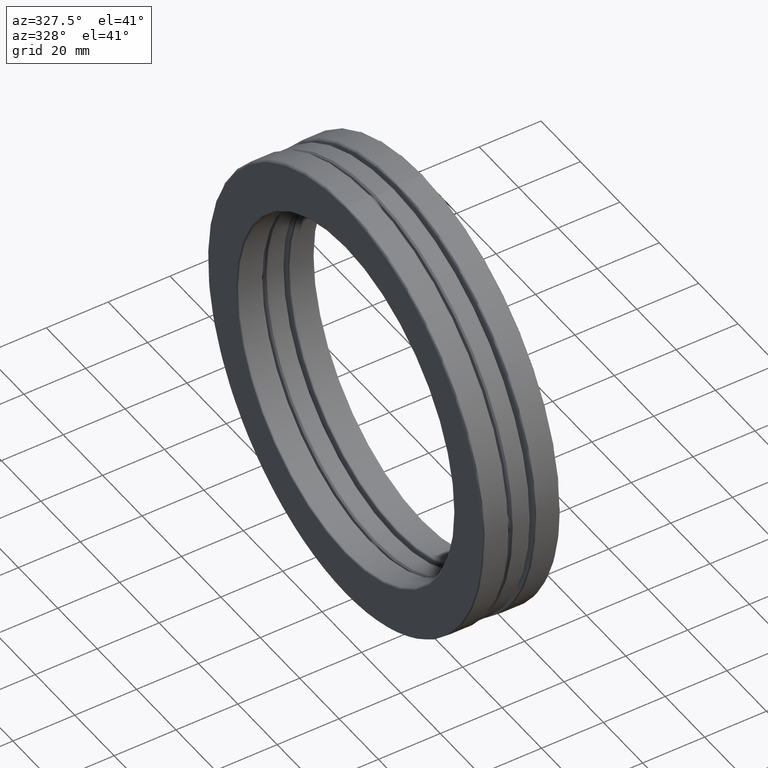
[diagram: clean part render]
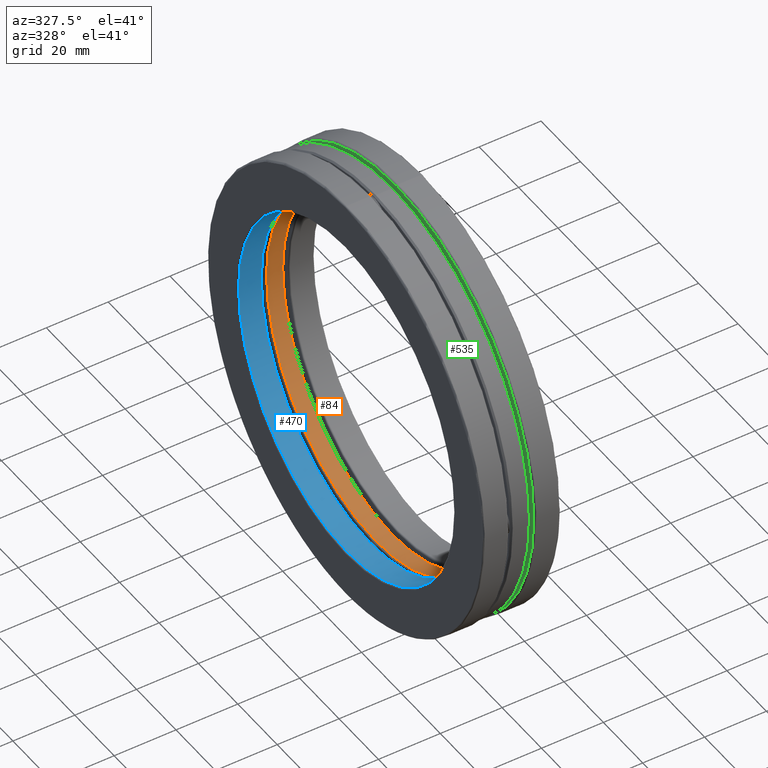
[diagram: same view with three faces highlighted in distinct colors, each labeled with its STEP entity id]
A machine part, auxiliary view with three faces highlighted in distinct colors.
Their STEP definitions:

[orange] entity #84 — the highlighted cylindrical surface (bore or boss wall) has radius 55.5117 mm, axis along (-1, -0, -0).
#35 = AXIS2_PLACEMENT_3D ( 'NONE', #153, #138, #716 ) ;
#71 = FACE_OUTER_BOUND ( 'NONE', #622, .T. ) ;
#84 = ADVANCED_FACE ( 'NONE', ( #71, #293 ), #739, .F. ) ;
#86 = CARTESIAN_POINT ( 'NONE',  ( 0.0000000000000000000, 0.0000000000000000000, 0.0000000000000000000 ) ) ;
#105 = CIRCLE ( 'NONE', #589, 2.185499999999999800 ) ;
#138 = DIRECTION ( 'NONE',  ( -1.000000000000000000, -0.0000000000000000000, -0.0000000000000000000 ) ) ;
#153 = CARTESIAN_POINT ( 'NONE',  ( -0.1029999999999999700, 0.0000000000000000000, 0.0000000000000000000 ) ) ;
#260 = VERTEX_POINT ( 'NONE', #486 ) ;
#281 = EDGE_LOOP ( 'NONE', ( #367 ) ) ;
#293 = FACE_OUTER_BOUND ( 'NONE', #281, .T. ) ;
#359 = DIRECTION ( 'NONE',  ( 0.0000000000000000000, 0.0000000000000000000, 1.000000000000000000 ) ) ;
#367 = ORIENTED_EDGE ( 'NONE', *, *, #454, .T. ) ;
#433 = CARTESIAN_POINT ( 'NONE',  ( -0.1029999999999999700, 0.0000000000000000000, 2.185499999999999800 ) ) ;
#449 = AXIS2_PLACEMENT_3D ( 'NONE', #86, #735, #460 ) ;
#454 = EDGE_CURVE ( 'NONE', #479, #479, #811, .T. ) ;
#460 = DIRECTION ( 'NONE',  ( 0.0000000000000000000, 0.0000000000000000000, 1.000000000000000000 ) ) ;
#474 = ORIENTED_EDGE ( 'NONE', *, *, #634, .F. ) ;
#479 = VERTEX_POINT ( 'NONE', #433 ) ;
#486 = CARTESIAN_POINT ( 'NONE',  ( 0.1030000000000000600, 0.0000000000000000000, 2.185499999999999800 ) ) ;
#539 = DIRECTION ( 'NONE',  ( -1.000000000000000000, -0.0000000000000000000, -0.0000000000000000000 ) ) ;
#589 = AXIS2_PLACEMENT_3D ( 'NONE', #793, #539, #359 ) ;
#622 = EDGE_LOOP ( 'NONE', ( #474 ) ) ;
#634 = EDGE_CURVE ( 'NONE', #260, #260, #105, .T. ) ;
#716 = DIRECTION ( 'NONE',  ( 0.0000000000000000000, 0.0000000000000000000, 1.000000000000000000 ) ) ;
#735 = DIRECTION ( 'NONE',  ( -1.000000000000000000, -0.0000000000000000000, -0.0000000000000000000 ) ) ;
#739 = CYLINDRICAL_SURFACE ( 'NONE', #449, 2.185499999999999800 ) ;
#793 = CARTESIAN_POINT ( 'NONE',  ( 0.1030000000000000600, 0.0000000000000000000, 0.0000000000000000000 ) ) ;
#811 = CIRCLE ( 'NONE', #35, 2.185499999999999800 ) ;

[blue] entity #470 — the highlighted cylindrical surface (bore or boss wall) has radius 55.0037 mm, axis along (-1, -0, -0).
#47 = DIRECTION ( 'NONE',  ( -1.000000000000000000, -0.0000000000000000000, -0.0000000000000000000 ) ) ;
#83 = DIRECTION ( 'NONE',  ( -1.000000000000000000, -0.0000000000000000000, -0.0000000000000000000 ) ) ;
#144 = CARTESIAN_POINT ( 'NONE',  ( -0.4719999999999999200, 0.0000000000000000000, 0.0000000000000000000 ) ) ;
#155 = EDGE_CURVE ( 'NONE', #384, #384, #728, .T. ) ;
#177 = CARTESIAN_POINT ( 'NONE',  ( -0.4719999999999999200, 0.0000000000000000000, 2.165499999999999800 ) ) ;
#211 = DIRECTION ( 'NONE',  ( 0.0000000000000000000, 0.0000000000000000000, 1.000000000000000000 ) ) ;
#262 = EDGE_CURVE ( 'NONE', #506, #506, #445, .T. ) ;
#300 = AXIS2_PLACEMENT_3D ( 'NONE', #559, #47, #756 ) ;
#340 = ORIENTED_EDGE ( 'NONE', *, *, #155, .T. ) ;
#384 = VERTEX_POINT ( 'NONE', #177 ) ;
#420 = AXIS2_PLACEMENT_3D ( 'NONE', #586, #458, #650 ) ;
#445 = CIRCLE ( 'NONE', #300, 2.165499999999999800 ) ;
#458 = DIRECTION ( 'NONE',  ( -1.000000000000000000, -0.0000000000000000000, -0.0000000000000000000 ) ) ;
#470 = ADVANCED_FACE ( 'NONE', ( #820, #638 ), #686, .F. ) ;
#506 = VERTEX_POINT ( 'NONE', #818 ) ;
#532 = EDGE_LOOP ( 'NONE', ( #340 ) ) ;
#559 = CARTESIAN_POINT ( 'NONE',  ( -0.1840032799999997100, 0.0000000000000000000, 0.0000000000000000000 ) ) ;
#575 = EDGE_LOOP ( 'NONE', ( #749 ) ) ;
#586 = CARTESIAN_POINT ( 'NONE',  ( 0.0000000000000000000, 0.0000000000000000000, 0.0000000000000000000 ) ) ;
#638 = FACE_OUTER_BOUND ( 'NONE', #575, .T. ) ;
#650 = DIRECTION ( 'NONE',  ( 0.0000000000000000000, 0.0000000000000000000, 1.000000000000000000 ) ) ;
#686 = CYLINDRICAL_SURFACE ( 'NONE', #420, 2.165499999999999800 ) ;
#728 = CIRCLE ( 'NONE', #784, 2.165499999999999800 ) ;
#749 = ORIENTED_EDGE ( 'NONE', *, *, #262, .F. ) ;
#756 = DIRECTION ( 'NONE',  ( 0.0000000000000000000, 0.0000000000000000000, 1.000000000000000000 ) ) ;
#784 = AXIS2_PLACEMENT_3D ( 'NONE', #144, #83, #211 ) ;
#818 = CARTESIAN_POINT ( 'NONE',  ( -0.1840032799999997100, 0.0000000000000000000, 2.165499999999999800 ) ) ;
#820 = FACE_OUTER_BOUND ( 'NONE', #532, .T. ) ;

[green] entity #535 — the highlighted planar face has unit normal (1, 0, 0).
#18 = CARTESIAN_POINT ( 'NONE',  ( 0.1640032800000010000, 0.0000000000000000000, 0.0000000000000000000 ) ) ;
#24 = DIRECTION ( 'NONE',  ( 1.000000000000000000, 0.0000000000000000000, 0.0000000000000000000 ) ) ;
#29 = EDGE_LOOP ( 'NONE', ( #279 ) ) ;
#46 = CARTESIAN_POINT ( 'NONE',  ( 0.1640032800000010000, 0.0000000000000000000, 2.735999999999999300 ) ) ;
#116 = DIRECTION ( 'NONE',  ( -1.000000000000000000, -0.0000000000000000000, -0.0000000000000000000 ) ) ;
#123 = AXIS2_PLACEMENT_3D ( 'NONE', #645, #24, #213 ) ;
#207 = EDGE_LOOP ( 'NONE', ( #419 ) ) ;
#213 = DIRECTION ( 'NONE',  ( 0.0000000000000000000, 0.0000000000000000000, -1.000000000000000000 ) ) ;
#253 = VERTEX_POINT ( 'NONE', #46 ) ;
#279 = ORIENTED_EDGE ( 'NONE', *, *, #772, .F. ) ;
#309 = FACE_BOUND ( 'NONE', #29, .T. ) ;
#318 = CARTESIAN_POINT ( 'NONE',  ( 0.1640032800000010000, 0.0000000000000000000, 2.638702027662629400 ) ) ;
#395 = VERTEX_POINT ( 'NONE', #318 ) ;
#419 = ORIENTED_EDGE ( 'NONE', *, *, #553, .T. ) ;
#440 = FACE_OUTER_BOUND ( 'NONE', #207, .T. ) ;
#457 = CIRCLE ( 'NONE', #704, 2.638702027662629400 ) ;
#469 = CIRCLE ( 'NONE', #547, 2.735999999999999300 ) ;
#492 = DIRECTION ( 'NONE',  ( 0.0000000000000000000, 0.0000000000000000000, 1.000000000000000000 ) ) ;
#524 = DIRECTION ( 'NONE',  ( 0.0000000000000000000, 0.0000000000000000000, 1.000000000000000000 ) ) ;
#535 = ADVANCED_FACE ( 'NONE', ( #309, #440 ), #782, .F. ) ;
#547 = AXIS2_PLACEMENT_3D ( 'NONE', #18, #720, #524 ) ;
#553 = EDGE_CURVE ( 'NONE', #253, #253, #469, .T. ) ;
#645 = CARTESIAN_POINT ( 'NONE',  ( 0.1640032800000010000, 0.0000000000000000000, 0.0000000000000000000 ) ) ;
#704 = AXIS2_PLACEMENT_3D ( 'NONE', #812, #116, #492 ) ;
#720 = DIRECTION ( 'NONE',  ( -1.000000000000000000, -0.0000000000000000000, -0.0000000000000000000 ) ) ;
#772 = EDGE_CURVE ( 'NONE', #395, #395, #457, .T. ) ;
#782 = PLANE ( 'NONE',  #123 ) ;
#812 = CARTESIAN_POINT ( 'NONE',  ( 0.1640032800000010000, 0.0000000000000000000, 0.0000000000000000000 ) ) ;